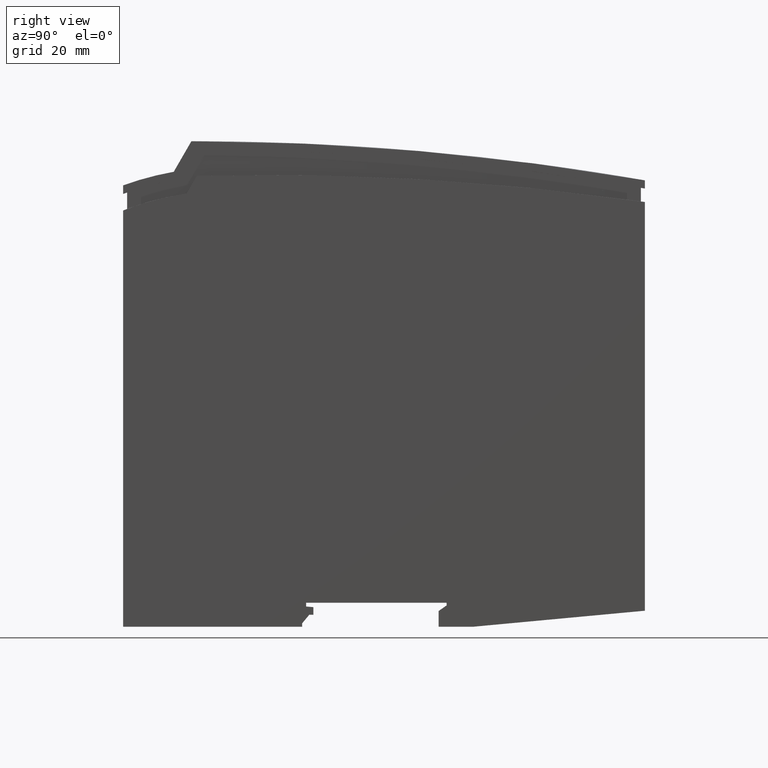
[diagram: clean part render]
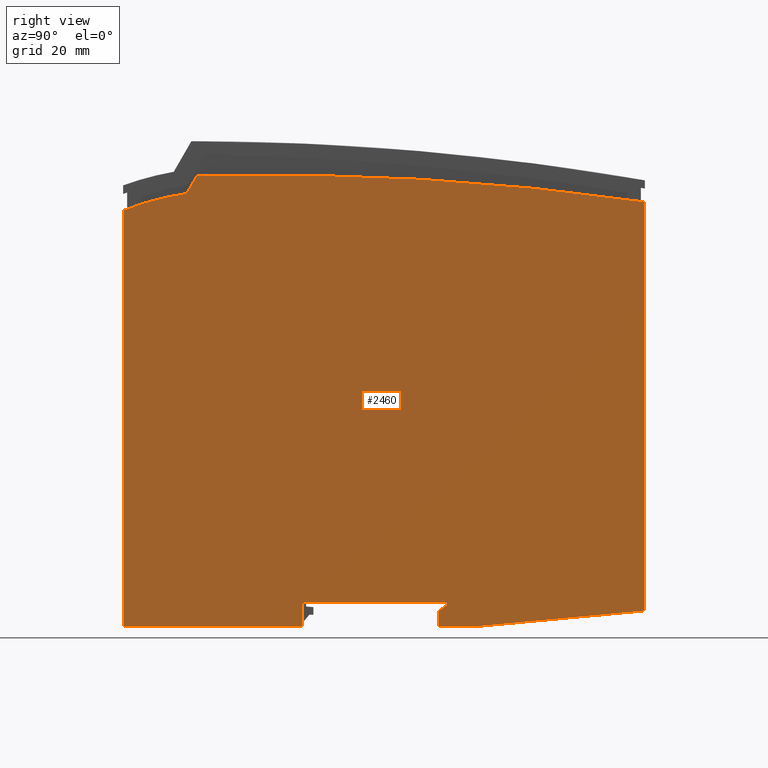
[diagram: same view with one face highlighted and labeled with its STEP entity id]
A machine part, right view. The second image highlights one B-rep face of the part: STEP entity #2460.
In plain terms, the highlighted planar face has unit normal (1, 0, 0).
Its self-contained STEP definition (entity closure, byte-faithful):
#100=CARTESIAN_POINT('',(0.,80.6,-46.5));
#110=VERTEX_POINT('',#100);
#160=CARTESIAN_POINT('',(0.,80.6,-46.5));
#170=DIRECTION('',(-1.,0.,0.));
#180=VECTOR('',#170,1.);
#190=LINE('',#160,#180);
#200=CARTESIAN_POINT('',(-0.674844346328724,80.6,-46.5));
#210=VERTEX_POINT('',#200);
#220=EDGE_CURVE('',#110,#210,#190,.T.);
#530=CARTESIAN_POINT('',(-57.1115719260258,0.,-46.5));
#540=DIRECTION('',(0.573576436351009,0.819152044289018,0.));
#550=VECTOR('',#540,1.);
#560=LINE('',#530,#550);
#570=CARTESIAN_POINT('',(-2.07525942275065,78.5999999999962,-46.5));
#580=VERTEX_POINT('',#570);
#590=EDGE_CURVE('',#580,#210,#560,.T.);
#1130=CARTESIAN_POINT('',(0.,44.5999999999962,-46.5));
#1140=VERTEX_POINT('',#1130);
#1170=CARTESIAN_POINT('',(0.,0.,-46.5));
#1180=DIRECTION('',(0.,-1.,0.));
#1190=VECTOR('',#1180,1.);
#1200=LINE('',#1170,#1190);
#1210=EDGE_CURVE('',#110,#1140,#1200,.T.);
#1560=CARTESIAN_POINT('',(-8.83583701850753,133.27016,-46.5));
#1570=DIRECTION('',(0.,0.,-1.));
#1580=DIRECTION('',(-1.,0.,0.));
#1590=AXIS2_PLACEMENT_3D('',#1560,#1570,#1580);
#1600=PLANE('',#1590);
#1610=CARTESIAN_POINT('',(-6.00000000000003,0.,-46.5));
#1620=DIRECTION('',(0.,-1.,0.));
#1630=VECTOR('',#1620,1.);
#1640=LINE('',#1610,#1630);
#1650=CARTESIAN_POINT('',(-6.00000000000003,87.1000000000225,-46.5));
#1660=VERTEX_POINT('',#1650);
#1670=CARTESIAN_POINT('',(-6.00000000000003,78.5999999999962,-46.5));
#1680=VERTEX_POINT('',#1670);
#1690=EDGE_CURVE('',#1660,#1680,#1640,.T.);
#1700=ORIENTED_EDGE('',*,*,#1690,.F.);
#1710=CARTESIAN_POINT('',(0.,78.5999999999962,-46.5));
#1720=DIRECTION('',(1.,0.,0.));
#1730=VECTOR('',#1720,1.);
#1740=LINE('',#1710,#1730);
#1750=EDGE_CURVE('',#1680,#580,#1740,.T.);
#1760=ORIENTED_EDGE('',*,*,#1750,.F.);
#1770=ORIENTED_EDGE('',*,*,#590,.F.);
#1780=ORIENTED_EDGE('',*,*,#220,.T.);
#1790=ORIENTED_EDGE('',*,*,#1210,.F.);
#1800=CARTESIAN_POINT('',(0.,44.5999999999962,-46.5));
#1810=DIRECTION('',(-1.,0.,0.));
#1820=VECTOR('',#1810,1.);
#1830=LINE('',#1800,#1820);
#1840=CARTESIAN_POINT('',(-6.,44.5999999999962,-46.5));
#1850=VERTEX_POINT('',#1840);
#1860=EDGE_CURVE('',#1140,#1850,#1830,.T.);
#1870=ORIENTED_EDGE('',*,*,#1860,.F.);
#1880=CARTESIAN_POINT('',(-6.,0.,-46.5));
#1890=DIRECTION('',(0.,-1.,0.));
#1900=VECTOR('',#1890,1.);
#1910=LINE('',#1880,#1900);
#1920=CARTESIAN_POINT('',(-6.,0.,-46.5));
#1930=VERTEX_POINT('',#1920);
#1940=EDGE_CURVE('',#1850,#1930,#1910,.T.);
#1950=ORIENTED_EDGE('',*,*,#1940,.F.);
#1960=CARTESIAN_POINT('',(0.,0.,-46.5));
#1970=DIRECTION('',(1.,0.,0.));
#1980=VECTOR('',#1970,1.);
#1990=LINE('',#1960,#1980);
#2000=CARTESIAN_POINT('',(97.7408136043137,0.,-46.5));
#2010=VERTEX_POINT('',#2000);
#2020=EDGE_CURVE('',#1930,#2010,#1990,.T.);
#2030=ORIENTED_EDGE('',*,*,#2020,.F.);
#2040=CARTESIAN_POINT('',(33.5200000000007,25.6399999999999,-46.5));
#2050=DIRECTION('',(0.,0.,1.));
#2060=DIRECTION('',(1.,0.,0.));
#2070=AXIS2_PLACEMENT_3D('',#2040,#2050,#2060);
#2080=CIRCLE('',#2070,69.1499999999993);
#2090=CARTESIAN_POINT('',(101.969994064791,15.8256832876613,-46.5));
#2100=VERTEX_POINT('',#2090);
#2110=EDGE_CURVE('',#2010,#2100,#2080,.T.);
#2120=ORIENTED_EDGE('',*,*,#2110,.F.);
#2130=CARTESIAN_POINT('',(0.,-42.8719664122846,-46.5));
#2140=DIRECTION('',(-0.86666783043328,-0.498885629871288,0.));
#2150=VECTOR('',#2140,1.);
#2160=LINE('',#2130,#2150);
#2170=CARTESIAN_POINT('',(106.390000000037,18.3700000000255,-46.5));
#2180=VERTEX_POINT('',#2170);
#2190=EDGE_CURVE('',#2180,#2100,#2160,.T.);
#2200=ORIENTED_EDGE('',*,*,#2190,.T.);
#2210=CARTESIAN_POINT('',(-548.999999999983,36.0000000000007,-46.5));
#2220=DIRECTION('',(0.,0.,1.));
#2230=DIRECTION('',(1.,0.,0.));
#2240=AXIS2_PLACEMENT_3D('',#2210,#2220,#2230);
#2250=CIRCLE('',#2240,655.627080740283);
#2260=CARTESIAN_POINT('',(99.8535034967812,130.,-46.5));
#2270=VERTEX_POINT('',#2260);
#2280=EDGE_CURVE('',#2180,#2270,#2250,.T.);
#2290=ORIENTED_EDGE('',*,*,#2280,.F.);
#2300=CARTESIAN_POINT('',(0.,130.,-46.5));
#2310=DIRECTION('',(-1.,0.,0.));
#2320=VECTOR('',#2310,1.);
#2330=LINE('',#2300,#2320);
#2340=CARTESIAN_POINT('',(-1.99999999999921,130.,-46.5));
#2350=VERTEX_POINT('',#2340);
#2360=EDGE_CURVE('',#2270,#2350,#2330,.T.);
#2370=ORIENTED_EDGE('',*,*,#2360,.F.);
#2380=CARTESIAN_POINT('',(-14.1212121212202,0.,-46.5));
#2390=DIRECTION('',(-0.0928374155221871,-0.99568128147473,0.));
#2400=VECTOR('',#2390,1.);
#2410=LINE('',#2380,#2400);
#2420=EDGE_CURVE('',#2350,#1660,#2410,.T.);
#2430=ORIENTED_EDGE('',*,*,#2420,.F.);
#2440=EDGE_LOOP('',(#2430,#2370,#2290,#2200,#2120,#2030,#1950,#1870,
#1790,#1780,#1770,#1760,#1700));
#2450=FACE_OUTER_BOUND('',#2440,.T.);
#2460=ADVANCED_FACE('',(#2450),#1600,.T.);